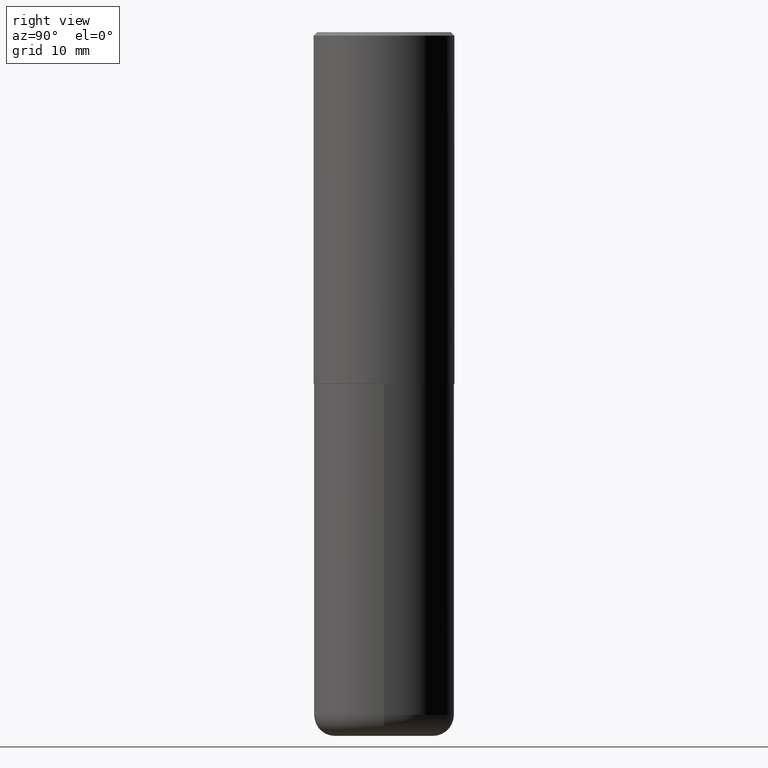
[diagram: clean part render]
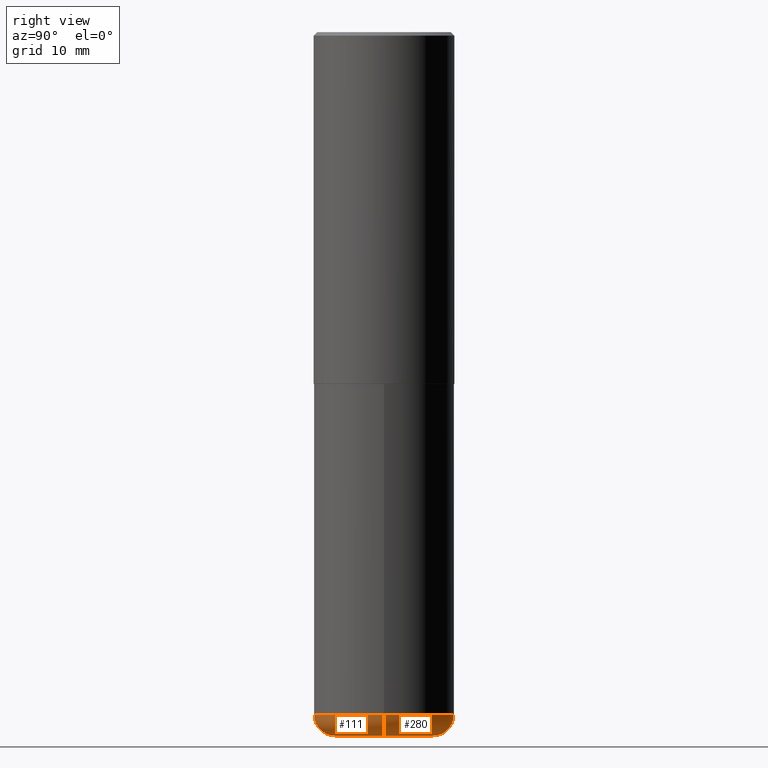
[diagram: same view with one multi-face feature highlighted, each face labeled with its STEP entity id]
A machine part, right view. The highlighted faces form ONE feature: a constant-radius fillet chain: 2 tangent blend faces with common blend radius 2.9997 mm. The faces share edges in the B-rep.
Their STEP definitions:
[1] entity #280 (Torus):
#7 = EDGE_CURVE ( 'NONE', #51, #268, #10, .T. ) ;
#10 = CIRCLE ( 'NONE', #386, 0.1181000000000000660 ) ;
#12 = AXIS2_PLACEMENT_3D ( 'NONE', #354, #64, #161 ) ;
#24 = DIRECTION ( 'NONE',  ( -2.445468806185136597E-29, 3.491481338843145583E-15, 1.000000000000000000 ) ) ;
#44 = CARTESIAN_POINT ( 'NONE',  ( 0.3937000000000001054, -1.608281049111317408E-14, -3.818900000000000183 ) ) ;
#49 = CIRCLE ( 'NONE', #181, 0.2756000000000000116 ) ;
#51 = VERTEX_POINT ( 'NONE', #375 ) ;
#57 = CARTESIAN_POINT ( 'NONE',  ( 9.627810689950883669E-29, -1.374596203102546341E-14, -3.937000000000000277 ) ) ;
#64 = DIRECTION ( 'NONE',  ( -2.445468806185136597E-29, 3.491481338843145583E-15, 1.000000000000000000 ) ) ;
#67 = CARTESIAN_POINT ( 'NONE',  ( 9.339000823940418668E-29, -1.333361808490808928E-14, -3.818900000000000183 ) ) ;
#82 = ORIENTED_EDGE ( 'NONE', *, *, #133, .T. ) ;
#93 = DIRECTION ( 'NONE',  ( -1.000000000000000000, 7.105427357601000281E-15, 0.000000000000000000 ) ) ;
#118 = DIRECTION ( 'NONE',  ( 1.000000000000000000, -6.982962677686265922E-15, 0.000000000000000000 ) ) ;
#133 = EDGE_CURVE ( 'NONE', #306, #51, #49, .T. ) ;
#150 = ORIENTED_EDGE ( 'NONE', *, *, #307, .F. ) ;
#153 = ORIENTED_EDGE ( 'NONE', *, *, #288, .F. ) ;
#155 = DIRECTION ( 'NONE',  ( 7.105427357601001859E-15, 1.000000000000000000, -3.491481338843145583E-15 ) ) ;
#161 = DIRECTION ( 'NONE',  ( 1.000000000000000000, -6.982962677686266711E-15, 4.883557194083112340E-29 ) ) ;
#181 = AXIS2_PLACEMENT_3D ( 'NONE', #57, #24, #118 ) ;
#189 = CARTESIAN_POINT ( 'NONE',  ( -0.2756000000000000116, -1.137536230515325427E-14, -3.818900000000000183 ) ) ;
#201 = DIRECTION ( 'NONE',  ( 1.000000000000000000, -6.982962677686266711E-15, 0.000000000000000000 ) ) ;
#209 = CIRCLE ( 'NONE', #228, 0.1181000000000000660 ) ;
#228 = AXIS2_PLACEMENT_3D ( 'NONE', #244, #371, #342 ) ;
#244 = CARTESIAN_POINT ( 'NONE',  ( 0.2756000000000000116, -1.525812259887842581E-14, -3.818900000000000183 ) ) ;
#267 = TOROIDAL_SURFACE ( 'NONE', #12, 0.2756000000000000116, 0.1181000000000000522 ) ;
#268 = VERTEX_POINT ( 'NONE', #411 ) ;
#270 = AXIS2_PLACEMENT_3D ( 'NONE', #67, #380, #201 ) ;
#280 = ADVANCED_FACE ( 'NONE', ( #383 ), #267, .T. ) ;
#288 = EDGE_CURVE ( 'NONE', #306, #325, #209, .T. ) ;
#306 = VERTEX_POINT ( 'NONE', #351 ) ;
#307 = EDGE_CURVE ( 'NONE', #325, #268, #363, .T. ) ;
#325 = VERTEX_POINT ( 'NONE', #44 ) ;
#336 = EDGE_LOOP ( 'NONE', ( #82, #370, #150, #153 ) ) ;
#342 = DIRECTION ( 'NONE',  ( 1.000000000000000000, -6.982962677686269077E-15, 0.000000000000000000 ) ) ;
#351 = CARTESIAN_POINT ( 'NONE',  ( 0.2756000000000000116, -1.567046654499579837E-14, -3.937000000000000277 ) ) ;
#354 = CARTESIAN_POINT ( 'NONE',  ( 9.339000823940418668E-29, -1.333361808490808928E-14, -3.818900000000000183 ) ) ;
#363 = CIRCLE ( 'NONE', #270, 0.3937000000000001054 ) ;
#370 = ORIENTED_EDGE ( 'NONE', *, *, #7, .T. ) ;
#371 = DIRECTION ( 'NONE',  ( -6.982962677686266711E-15, -1.000000000000000000, 3.491481338843145583E-15 ) ) ;
#375 = CARTESIAN_POINT ( 'NONE',  ( -0.2756000000000000116, -1.116195879274560421E-14, -3.937000000000000277 ) ) ;
#380 = DIRECTION ( 'NONE',  ( -2.445468806185136597E-29, 3.491481338843145583E-15, 1.000000000000000000 ) ) ;
#383 = FACE_OUTER_BOUND ( 'NONE', #336, .T. ) ;
#386 = AXIS2_PLACEMENT_3D ( 'NONE', #189, #155, #93 ) ;
#411 = CARTESIAN_POINT ( 'NONE',  ( -0.3937000000000001054, -1.053621133422057529E-14, -3.818900000000000183 ) ) ;
[2] entity #111 (Torus):
#7 = EDGE_CURVE ( 'NONE', #51, #268, #10, .T. ) ;
#9 = ORIENTED_EDGE ( 'NONE', *, *, #296, .F. ) ;
#10 = CIRCLE ( 'NONE', #386, 0.1181000000000000660 ) ;
#44 = CARTESIAN_POINT ( 'NONE',  ( 0.3937000000000001054, -1.608281049111317408E-14, -3.818900000000000183 ) ) ;
#51 = VERTEX_POINT ( 'NONE', #375 ) ;
#52 = CARTESIAN_POINT ( 'NONE',  ( 9.339000823940418668E-29, -1.333361808490808928E-14, -3.818900000000000183 ) ) ;
#71 = DIRECTION ( 'NONE',  ( 1.000000000000000000, -6.982962677686266711E-15, 0.000000000000000000 ) ) ;
#90 = DIRECTION ( 'NONE',  ( -2.445468806185136597E-29, 3.491481338843145583E-15, 1.000000000000000000 ) ) ;
#93 = DIRECTION ( 'NONE',  ( -1.000000000000000000, 7.105427357601000281E-15, 0.000000000000000000 ) ) ;
#99 = FACE_OUTER_BOUND ( 'NONE', #206, .T. ) ;
#111 = ADVANCED_FACE ( 'NONE', ( #99 ), #362, .T. ) ;
#147 = AXIS2_PLACEMENT_3D ( 'NONE', #52, #261, #71 ) ;
#148 = DIRECTION ( 'NONE',  ( 1.000000000000000000, -6.982962677686266711E-15, 4.883557194083112340E-29 ) ) ;
#155 = DIRECTION ( 'NONE',  ( 7.105427357601001859E-15, 1.000000000000000000, -3.491481338843145583E-15 ) ) ;
#160 = EDGE_CURVE ( 'NONE', #51, #306, #266, .T. ) ;
#182 = DIRECTION ( 'NONE',  ( -2.445468806185136597E-29, 3.491481338843145583E-15, 1.000000000000000000 ) ) ;
#189 = CARTESIAN_POINT ( 'NONE',  ( -0.2756000000000000116, -1.137536230515325427E-14, -3.818900000000000183 ) ) ;
#190 = CIRCLE ( 'NONE', #147, 0.3937000000000001054 ) ;
#198 = AXIS2_PLACEMENT_3D ( 'NONE', #311, #90, #219 ) ;
#206 = EDGE_LOOP ( 'NONE', ( #248, #305, #282, #9 ) ) ;
#209 = CIRCLE ( 'NONE', #228, 0.1181000000000000660 ) ;
#219 = DIRECTION ( 'NONE',  ( 1.000000000000000000, -6.982962677686265922E-15, 0.000000000000000000 ) ) ;
#228 = AXIS2_PLACEMENT_3D ( 'NONE', #244, #371, #342 ) ;
#232 = CARTESIAN_POINT ( 'NONE',  ( 9.339000823940418668E-29, -1.333361808490808928E-14, -3.818900000000000183 ) ) ;
#244 = CARTESIAN_POINT ( 'NONE',  ( 0.2756000000000000116, -1.525812259887842581E-14, -3.818900000000000183 ) ) ;
#248 = ORIENTED_EDGE ( 'NONE', *, *, #7, .F. ) ;
#261 = DIRECTION ( 'NONE',  ( -2.445468806185136597E-29, 3.491481338843145583E-15, 1.000000000000000000 ) ) ;
#266 = CIRCLE ( 'NONE', #198, 0.2756000000000000116 ) ;
#268 = VERTEX_POINT ( 'NONE', #411 ) ;
#269 = AXIS2_PLACEMENT_3D ( 'NONE', #232, #182, #148 ) ;
#282 = ORIENTED_EDGE ( 'NONE', *, *, #288, .T. ) ;
#288 = EDGE_CURVE ( 'NONE', #306, #325, #209, .T. ) ;
#296 = EDGE_CURVE ( 'NONE', #268, #325, #190, .T. ) ;
#305 = ORIENTED_EDGE ( 'NONE', *, *, #160, .T. ) ;
#306 = VERTEX_POINT ( 'NONE', #351 ) ;
#311 = CARTESIAN_POINT ( 'NONE',  ( 9.627810689950883669E-29, -1.374596203102546341E-14, -3.937000000000000277 ) ) ;
#325 = VERTEX_POINT ( 'NONE', #44 ) ;
#342 = DIRECTION ( 'NONE',  ( 1.000000000000000000, -6.982962677686269077E-15, 0.000000000000000000 ) ) ;
#351 = CARTESIAN_POINT ( 'NONE',  ( 0.2756000000000000116, -1.567046654499579837E-14, -3.937000000000000277 ) ) ;
#362 = TOROIDAL_SURFACE ( 'NONE', #269, 0.2756000000000000116, 0.1181000000000000522 ) ;
#371 = DIRECTION ( 'NONE',  ( -6.982962677686266711E-15, -1.000000000000000000, 3.491481338843145583E-15 ) ) ;
#375 = CARTESIAN_POINT ( 'NONE',  ( -0.2756000000000000116, -1.116195879274560421E-14, -3.937000000000000277 ) ) ;
#386 = AXIS2_PLACEMENT_3D ( 'NONE', #189, #155, #93 ) ;
#411 = CARTESIAN_POINT ( 'NONE',  ( -0.3937000000000001054, -1.053621133422057529E-14, -3.818900000000000183 ) ) ;